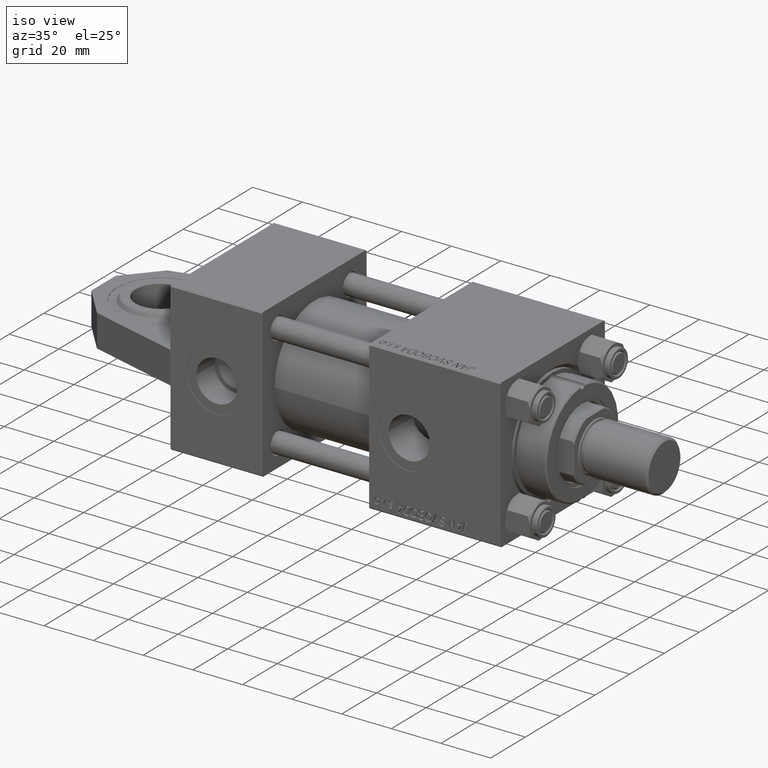
[diagram: clean part render]
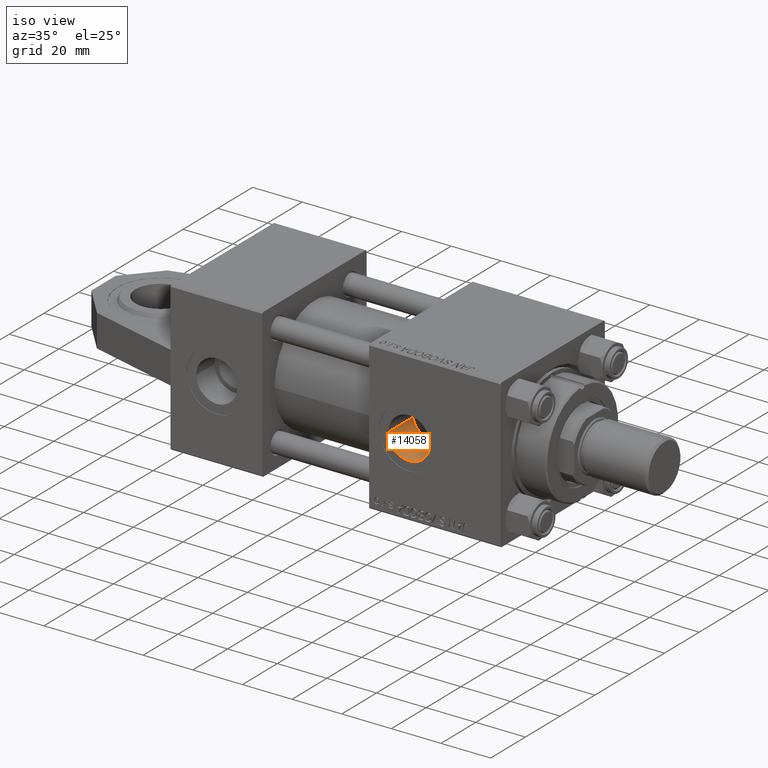
[diagram: same view with one face highlighted and labeled with its STEP entity id]
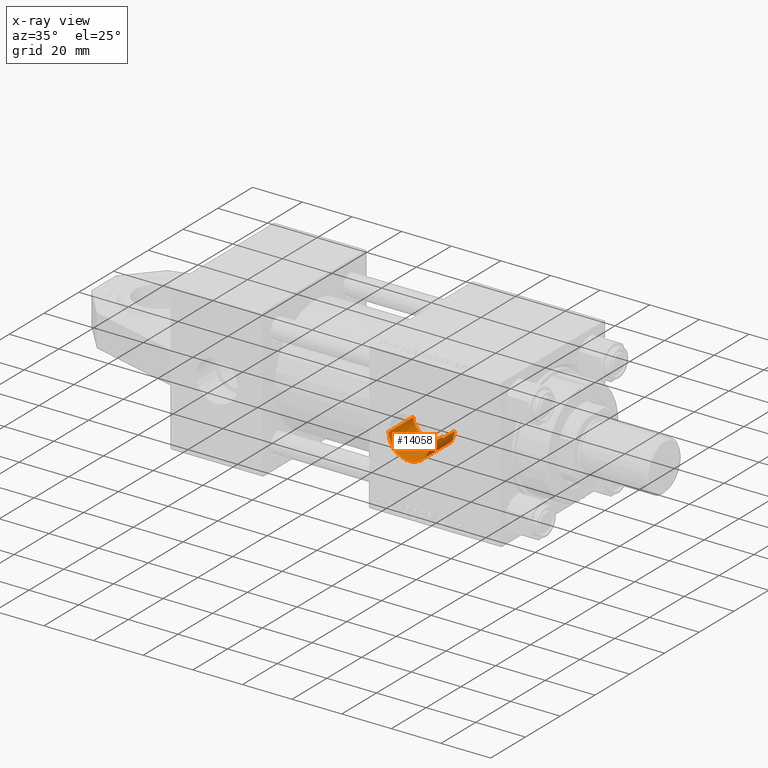
[diagram: x-ray of the same camera — body ghosted, the highlighted face saturated]
A machine part, iso view. The second image highlights one B-rep face of the part: STEP entity #14058.
The next image is the same camera in x-ray: the body ghosted, the highlighted face saturated — about 0% of this face is hidden behind the body in this view.
In plain terms, the highlighted cylindrical surface (edge-blend (fillet) strip) has radius 8.33 mm, axis along (0, 1, 0).
Its self-contained STEP definition (entity closure, byte-faithful):
#194 = CARTESIAN_POINT ( 'NONE',  ( 87.66999999999998749, -3.469446951953613794E-15, 29.79999999999999716 ) ) ;
#1002 = CARTESIAN_POINT ( 'NONE',  ( 88.55551235389050646, -3.757474466741724139, 15.04203335714862888 ) ) ;
#1767 = CARTESIAN_POINT ( 'NONE',  ( 87.66999999999960380, -2.713081767949618745E-14, 15.50000000000020428 ) ) ;
#1771 = CARTESIAN_POINT ( 'NONE',  ( 100.9563515716284172, -6.704148802593606682, 13.97684504926377436 ) ) ;
#2291 = CYLINDRICAL_SURFACE ( 'NONE', #39320, 8.330000000000003624 ) ;
#3463 = CARTESIAN_POINT ( 'NONE',  ( 104.3299999999999983, -2.449316168263869821E-15, 29.79999999999999716 ) ) ;
#3593 = ORIENTED_EDGE ( 'NONE', *, *, #5606, .T. ) ;
#5380 = CARTESIAN_POINT ( 'NONE',  ( 89.84213957642496950, -5.622509492967814992, 14.44759832893447538 ) ) ;
#5548 = CARTESIAN_POINT ( 'NONE',  ( 104.3299999999999983, -0.2354428451521790588, 22.50000000000000355 ) ) ;
#5606 = EDGE_CURVE ( 'NONE', #10524, #29171, #33880, .T. ) ;
#5630 = CARTESIAN_POINT ( 'NONE',  ( 101.7527035097905639, -6.034536163537555176, 14.27924648151576115 ) ) ;
#6267 = ORIENTED_EDGE ( 'NONE', *, *, #18089, .F. ) ;
#6437 = DIRECTION ( 'NONE',  ( 1.000000000000000000, 0.000000000000000000, 0.000000000000000000 ) ) ;
#8462 = ORIENTED_EDGE ( 'NONE', *, *, #48113, .F. ) ;
#8972 = CARTESIAN_POINT ( 'NONE',  ( 89.13690270712216090, -4.736043274220092414, 14.76252165391442617 ) ) ;
#9489 = CARTESIAN_POINT ( 'NONE',  ( 101.9996026483515266, -5.789379398717200864, 14.38096412590976314 ) ) ;
#9732 = CIRCLE ( 'NONE', #49926, 8.330000000000003624 ) ;
#10524 = VERTEX_POINT ( 'NONE', #34663 ) ;
#10686 = VERTEX_POINT ( 'NONE', #18637 ) ;
#11553 = CARTESIAN_POINT ( 'NONE',  ( 90.94114337759535260, -6.660665606237830438, 14.00684504084867399 ) ) ;
#12379 = ORIENTED_EDGE ( 'NONE', *, *, #13216, .F. ) ;
#12562 = CARTESIAN_POINT ( 'NONE',  ( 104.0832175232424390, -2.135847849507479079, 15.36739229984353905 ) ) ;
#13216 = EDGE_CURVE ( 'NONE', #33202, #18120, #29973, .T. ) ;
#13328 = CARTESIAN_POINT ( 'NONE',  ( 104.2999999999999829, -0.7063285354565423946, 15.48389808801387701 ) ) ;
#13574 = CARTESIAN_POINT ( 'NONE',  ( 102.6814859054844931, -4.986894924185196309, 14.67899340481594095 ) ) ;
#13764 = EDGE_CURVE ( 'NONE', #47833, #10524, #20580, .T. ) ;
#14058 = ADVANCED_FACE ( 'NONE', ( #41313 ), #2291, .F. ) ;
#14083 = CARTESIAN_POINT ( 'NONE',  ( 100.0719793388102090, -7.275582495151254214, 13.68755679569670924 ) ) ;
#14329 = CARTESIAN_POINT ( 'NONE',  ( 100.3773959923152859, -7.095733675622467374, 13.78217589145791422 ) ) ;
#14683 = DIRECTION ( 'NONE',  ( -0.000000000000000000, -0.000000000000000000, -1.000000000000000000 ) ) ;
#15981 = LINE ( 'NONE', #35208, #41924 ) ;
#16116 = EDGE_CURVE ( 'NONE', #10686, #18120, #28671, .T. ) ;
#16662 = CARTESIAN_POINT ( 'NONE',  ( 88.23887511213121115, -3.050237885181525055, 15.20123122413415828 ) ) ;
#17088 = CARTESIAN_POINT ( 'NONE',  ( 104.2999999999999829, -0.7063285354565423946, 22.48891060056044111 ) ) ;
#17501 = CARTESIAN_POINT ( 'NONE',  ( 104.3299999999999983, -2.449316168263869032E-15, 52.79999999999999716 ) ) ;
#17761 = DIRECTION ( 'NONE',  ( 1.000000000000000000, 0.000000000000000000, 0.000000000000000000 ) ) ;
#18089 = EDGE_CURVE ( 'NONE', #25865, #29171, #15981, .T. ) ;
#18120 = VERTEX_POINT ( 'NONE', #35716 ) ;
#18637 = CARTESIAN_POINT ( 'NONE',  ( 92.24514980325447766, -7.435724578008537478, 13.59999999999999076 ) ) ;
#20493 = CARTESIAN_POINT ( 'NONE',  ( 92.24514980325447766, -7.435724578008537478, 13.59999999999999076 ) ) ;
#20580 = LINE ( 'NONE', #17501, #48354 ) ;
#21717 = ORIENTED_EDGE ( 'NONE', *, *, #13764, .T. ) ;
#22329 = DIRECTION ( 'NONE',  ( 0.000000000000000000, 0.000000000000000000, 1.000000000000000000 ) ) ;
#24590 = CARTESIAN_POINT ( 'NONE',  ( 87.80897203798814132, -1.564748737126397060, 15.42568822226018455 ) ) ;
#25093 = CARTESIAN_POINT ( 'NONE',  ( 87.89065155325323531, -1.943315834972987322, 15.38227098439063845 ) ) ;
#25865 = VERTEX_POINT ( 'NONE', #43187 ) ;
#25991 = ORIENTED_EDGE ( 'NONE', *, *, #41926, .T. ) ;
#27750 = DIRECTION ( 'NONE',  ( -0.000000000000000000, -0.000000000000000000, 1.000000000000000000 ) ) ;
#28185 = CARTESIAN_POINT ( 'NONE',  ( 103.7215032992639010, -3.145651711574540155, 15.18130506059515916 ) ) ;
#28351 = CARTESIAN_POINT ( 'NONE',  ( 104.3299999999999983, 2.755455270027974659E-15, 22.50000000000000355 ) ) ;
#28621 = VECTOR ( 'NONE', #45170, 1000.000000000000000 ) ;
#28671 = B_SPLINE_CURVE_WITH_KNOTS ( 'NONE', 3,
 ( #20493, #31027, #11553, #48749, #5380, #28685, #8972, #48997, #1002, #16662, #36911, #25093, #24590, #40776, #29193, #1767 ),
 .UNSPECIFIED., .F., .F.,
 ( 4, 2, 2, 2, 2, 2, 2, 4 ),
 ( 1.672906736921607970E-17, 0.002343612196725057811, 0.003515418295087579560, 0.004687224393450100876, 0.005859030491812622192, 0.007030836590175143508, 0.008202642688537667426, 0.009374448786900189609 ),
 .UNSPECIFIED. ) ;
#28685 = CARTESIAN_POINT ( 'NONE',  ( 89.35809991009442399, -5.041529647880460985, 14.66044642165734757 ) ) ;
#28951 = CARTESIAN_POINT ( 'NONE',  ( 103.2557022334253247, -4.107191428842675407, 14.94947048340129570 ) ) ;
#29171 = VERTEX_POINT ( 'NONE', #42482 ) ;
#29193 = CARTESIAN_POINT ( 'NONE',  ( 87.67000000000000171, -0.3932737753490452848, 15.50000000000000533 ) ) ;
#29811 = CARTESIAN_POINT ( 'NONE',  ( 95.99999999999998579, -3.469446951953613794E-15, 29.79999999999999716 ) ) ;
#29973 = LINE ( 'NONE', #49268, #28621 ) ;
#31027 = CARTESIAN_POINT ( 'NONE',  ( 91.55805430143193746, -7.088758972554064286, 13.78970152060304244 ) ) ;
#32046 = CARTESIAN_POINT ( 'NONE',  ( 104.2379181272460329, -1.435846766692595811, 15.45061967576078032 ) ) ;
#32294 = CARTESIAN_POINT ( 'NONE',  ( 103.0762267006178945, -4.408899020335443453, 14.86282536370454643 ) ) ;
#33202 = VERTEX_POINT ( 'NONE', #194 ) ;
#33329 = CARTESIAN_POINT ( 'NONE',  ( 95.99999999999998579, -3.469446951953613794E-15, 52.79999999999999716 ) ) ;
#33880 = B_SPLINE_CURVE_WITH_KNOTS ( 'NONE', 3,
 ( #28351, #5548, #40189, #17088 ),
 .UNSPECIFIED., .F., .F.,
 ( 4, 4 ),
 ( 0.0007063285354565328363, 0.001412657070913077816 ),
 .UNSPECIFIED. ) ;
#34663 = CARTESIAN_POINT ( 'NONE',  ( 104.3299999999999983, 2.755455270027974659E-15, 22.50000000000000355 ) ) ;
#34865 = ORIENTED_EDGE ( 'NONE', *, *, #41679, .F. ) ;
#35208 = CARTESIAN_POINT ( 'NONE',  ( 104.2999999999999829, -0.7063285354565423946, 52.79999999999999716 ) ) ;
#35716 = CARTESIAN_POINT ( 'NONE',  ( 87.66999999999960380, -2.713081767949618745E-14, 15.50000000000020428 ) ) ;
#36911 = CARTESIAN_POINT ( 'NONE',  ( 88.10521147895698846, -2.685204437881586692, 15.27024604249924700 ) ) ;
#36913 = CARTESIAN_POINT ( 'NONE',  ( 101.2310764146981228, -6.491922975836115661, 14.07719584522194900 ) ) ;
#37443 = DIRECTION ( 'NONE',  ( -1.000000000000000000, 0.000000000000000000, 0.000000000000000000 ) ) ;
#38242 = CARTESIAN_POINT ( 'NONE',  ( 95.99999999999998579, -3.469446951953613794E-15, 13.59999999999999076 ) ) ;
#39320 = AXIS2_PLACEMENT_3D ( 'NONE', #33329, #50038, #37443 ) ;
#40189 = CARTESIAN_POINT ( 'NONE',  ( 104.3200361445782960, -0.4708856903043605602, 22.49630535626710781 ) ) ;
#40776 = CARTESIAN_POINT ( 'NONE',  ( 87.69851239971403345, -0.7916320528489113606, 15.48462509825850830 ) ) ;
#41313 = FACE_OUTER_BOUND ( 'NONE', #42006, .T. ) ;
#41679 = EDGE_CURVE ( 'NONE', #10686, #49608, #9732, .T. ) ;
#41924 = VECTOR ( 'NONE', #27750, 1000.000000000000000 ) ;
#41926 = EDGE_CURVE ( 'NONE', #25865, #49608, #42549, .T. ) ;
#42006 = EDGE_LOOP ( 'NONE', ( #8462, #21717, #3593, #6267, #25991, #34865, #48146, #12379 ) ) ;
#42051 = CARTESIAN_POINT ( 'NONE',  ( 99.75485019674549392, -7.435724578008537478, 13.59999999999999076 ) ) ;
#42482 = CARTESIAN_POINT ( 'NONE',  ( 104.2999999999999829, -0.7063285354565423946, 22.48891060056044111 ) ) ;
#42549 = B_SPLINE_CURVE_WITH_KNOTS ( 'NONE', 3,
 ( #13328, #32046, #12562, #28185, #43878, #28951, #32294, #13574, #44654, #9489, #5630, #36913, #1771, #14329, #14083, #42051 ),
 .UNSPECIFIED., .F., .F.,
 ( 4, 2, 2, 2, 2, 2, 2, 4 ),
 ( 0.000000000000000000, 0.002164281519507907717, 0.003246422279261855070, 0.004328563039015802423, 0.005410703798769749343, 0.006492844558523696262, 0.007574985318277644049, 0.008657126078031590968 ),
 .UNSPECIFIED. ) ;
#43187 = CARTESIAN_POINT ( 'NONE',  ( 104.2999999999999829, -0.7063285354565423946, 15.48389808801387701 ) ) ;
#43878 = CARTESIAN_POINT ( 'NONE',  ( 103.5780231920916066, -3.476751477085096464, 15.10853693558154909 ) ) ;
#44396 = CIRCLE ( 'NONE', #46040, 8.330000000000003624 ) ;
#44654 = CARTESIAN_POINT ( 'NONE',  ( 102.4654438345357192, -5.264046141786906219, 14.58145607373053387 ) ) ;
#45170 = DIRECTION ( 'NONE',  ( 0.000000000000000000, 0.000000000000000000, -1.000000000000000000 ) ) ;
#46040 = AXIS2_PLACEMENT_3D ( 'NONE', #29811, #14683, #17761 ) ;
#46448 = CARTESIAN_POINT ( 'NONE',  ( 99.75485019674549392, -7.435724578008537478, 13.59999999999999076 ) ) ;
#47833 = VERTEX_POINT ( 'NONE', #3463 ) ;
#48073 = DIRECTION ( 'NONE',  ( 0.000000000000000000, 0.000000000000000000, -1.000000000000000000 ) ) ;
#48113 = EDGE_CURVE ( 'NONE', #47833, #33202, #44396, .T. ) ;
#48146 = ORIENTED_EDGE ( 'NONE', *, *, #16116, .T. ) ;
#48354 = VECTOR ( 'NONE', #48073, 1000.000000000000000 ) ;
#48749 = CARTESIAN_POINT ( 'NONE',  ( 90.10642721102998109, -5.898864207807599236, 14.33631558793831395 ) ) ;
#48997 = CARTESIAN_POINT ( 'NONE',  ( 88.73561392419421168, -4.094008462183725605, 14.95330218343579531 ) ) ;
#49268 = CARTESIAN_POINT ( 'NONE',  ( 87.66999999999998749, -3.469446951953613794E-15, 52.79999999999999716 ) ) ;
#49608 = VERTEX_POINT ( 'NONE', #46448 ) ;
#49926 = AXIS2_PLACEMENT_3D ( 'NONE', #38242, #22329, #6437 ) ;
#50038 = DIRECTION ( 'NONE',  ( 0.000000000000000000, 0.000000000000000000, -1.000000000000000000 ) ) ;